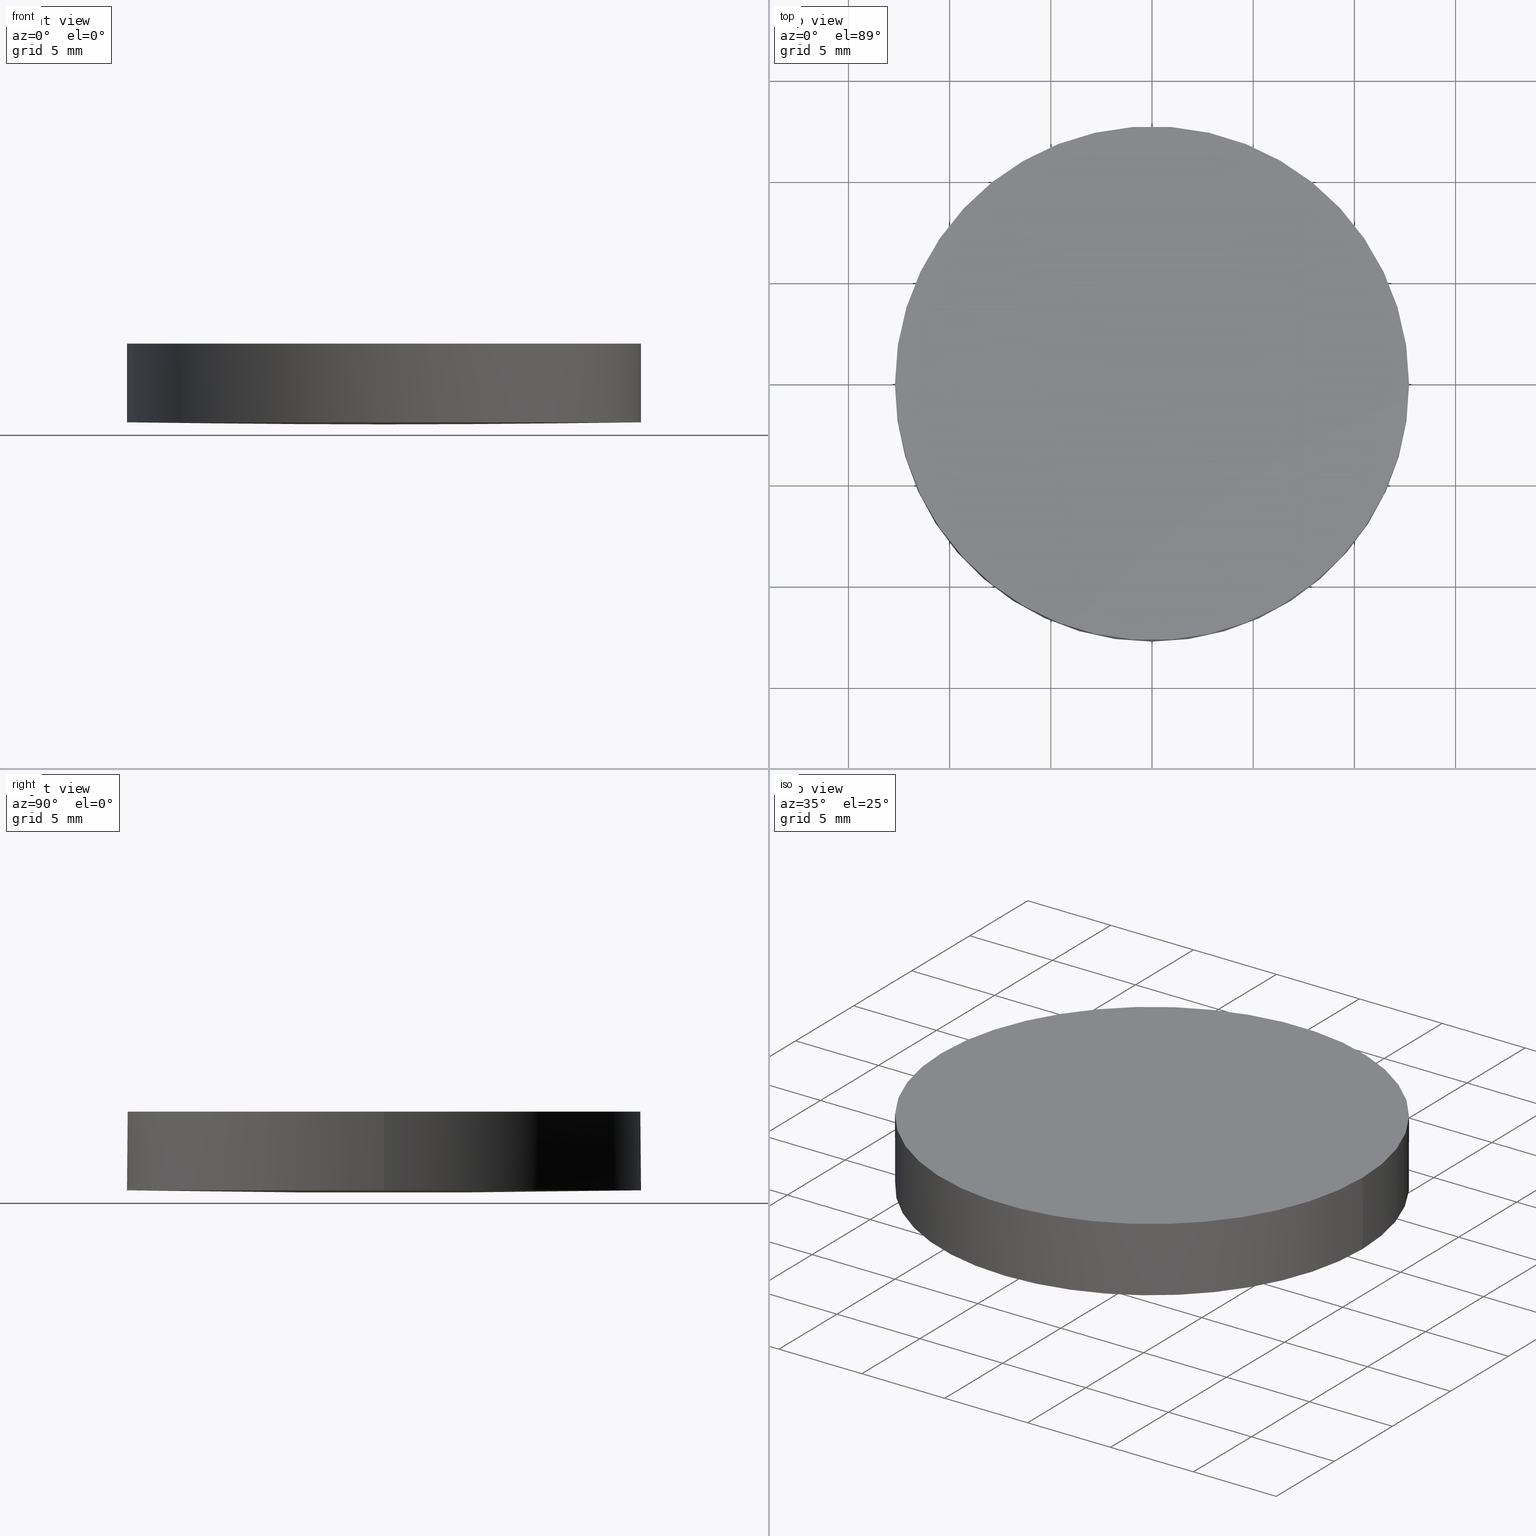
[diagram: canonical four-view strip — front | top / right | iso, engineering-drawing reading convention]
A machine part, canonical four-view strip (front | top / right | iso — engineering-drawing reading convention). The complete STEP part file that produces these views, byte-faithful:
ISO-10303-21;
HEADER;
FILE_DESCRIPTION (( 'STEP AP203' ),
    '1' );
FILE_NAME ('110-1255E UVFS pl-cx 25.4 F1500.STEP',
    '2018-12-13T14:56:42',
    ( '' ),
    ( '' ),
    'SwSTEP 2.0',
    'SolidWorks 2017',
    '' );
FILE_SCHEMA (( 'CONFIG_CONTROL_DESIGN' ));
ENDSEC;

DATA;
#1 = CARTESIAN_POINT ( 'NONE',  ( -12.69999999999999900, 3.997792089092478900E-015, 0.1129412937514580100 ) ) ;
#2 = CC_DESIGN_PERSON_AND_ORGANIZATION_ASSIGNMENT ( #81, #212, ( #123 ) ) ;
#3 = CARTESIAN_POINT ( 'NONE',  ( 4.996003610813200500E-016, 2.442490654175340100E-015, 0.1129412937514580100 ) ) ;
#4 = DIRECTION ( 'NONE',  ( 0.0000000000000000000, 0.0000000000000000000, 1.000000000000000000 ) ) ;
#5 = CARTESIAN_POINT ( 'NONE',  ( -2.898597193858023400E-014, 4.284590551240764700, -0.03856018883015555800 ) ) ;
#6 = CIRCLE ( 'NONE', #223, 12.69999999999999900 ) ;
#7 = CARTESIAN_POINT ( 'NONE',  ( -8.516479223123841500, 12.85238363988632700, 0.1537631259420381100 ) ) ;
#8 = CARTESIAN_POINT ( 'NONE',  ( 12.77688178538097900, -4.284590551240592400, 0.07574660210749215000 ) ) ;
#9 = CC_DESIGN_PERSON_AND_ORGANIZATION_ASSIGNMENT ( #210, #23, ( #87 ) ) ;
#10 = APPLICATION_CONTEXT ( 'configuration controlled 3d designs of mechanical parts and assemblies' ) ;
#11 = PERSON_AND_ORGANIZATION ( #15, #16 ) ;
#12 = ORIENTED_EDGE ( 'NONE', *, *, #157, .F. ) ;
#13 = DATE_AND_TIME ( #40, #215 ) ;
#14 = ORIENTED_EDGE ( 'NONE', *, *, #218, .T. ) ;
#15 = PERSON ( 'UNSPECIFIED', 'UNSPECIFIED', 'UNSPECIFIED', ('UNSPECIFIED'), ('UNSPECIFIED'), ('UNSPECIFIED') ) ;
#16 = ORGANIZATION ( 'UNSPECIFIED', 'UNSPECIFIED', '' ) ;
#17 = CARTESIAN_POINT ( 'NONE',  ( 8.516479223123806000, -12.85238363988615100, 0.1537631259419917100 ) ) ;
#18 = AXIS2_PLACEMENT_3D ( 'NONE', #229, #214, #231 ) ;
#19 = PERSON_AND_ORGANIZATION ( #15, #16 ) ;
#20 = DIRECTION ( 'NONE',  ( 1.000000000000000000, 0.0000000000000000000, 0.0000000000000000000 ) ) ;
#21 = CARTESIAN_POINT ( 'NONE',  ( -4.258324813021966200, 12.85238363988632700, 0.1156680747306574900 ) ) ;
#22 = CC_DESIGN_DATE_AND_TIME_ASSIGNMENT ( #13, #116, ( #91 ) ) ;
#23 = PERSON_AND_ORGANIZATION_ROLE ( 'design_owner' ) ;
#24 = PERSON_AND_ORGANIZATION ( #15, #16 ) ;
#25 = ORIENTED_EDGE ( 'NONE', *, *, #165, .F. ) ;
#26 = CC_DESIGN_APPROVAL ( #110, ( #194 ) ) ;
#27 = DIRECTION ( 'NONE',  ( -0.0000000000000000000, -0.0000000000000000000, -1.000000000000000000 ) ) ;
#28 = PRODUCT_RELATED_PRODUCT_CATEGORY ( 'detail', '', ( #87 ) ) ;
#29 = DIRECTION ( 'NONE',  ( 1.000000000000000000, -8.881784197001252300E-016, 0.0000000000000000000 ) ) ;
#30 = CYLINDRICAL_SURFACE ( 'NONE', #213, 12.69999999999999900 ) ;
#31 = DIRECTION ( 'NONE',  ( 0.0000000000000000000, 0.0000000000000000000, 1.000000000000000000 ) ) ;
#32 = CARTESIAN_POINT ( 'NONE',  ( 8.518318873860531300, -4.284590551240591500, -0.0004569086796730478300 ) ) ;
#33 = APPROVAL_DATE_TIME ( #52, #55 ) ;
#34 = CARTESIAN_POINT ( 'NONE',  ( 4.258324813021828500, -12.85238363988615100, 0.1156680747306225900 ) ) ;
#35 = CYLINDRICAL_SURFACE ( 'NONE', #63, 12.69999999999999900 ) ;
#36 = PLANE ( 'NONE',  #140 ) ;
#37 = FACE_OUTER_BOUND ( 'NONE', #133, .T. ) ;
#38 = CC_DESIGN_PERSON_AND_ORGANIZATION_ASSIGNMENT ( #24, #62, ( #194 ) ) ;
#39 = APPLICATION_CONTEXT ( 'configuration controlled 3d designs of mechanical parts and assemblies' ) ;
#40 = CALENDAR_DATE ( 2018, 13, 12 ) ;
#41 = VERTEX_POINT ( 'NONE', #47 ) ;
#42 = AXIS2_PLACEMENT_3D ( 'NONE', #159, #46, #29 ) ;
#43 = VERTEX_POINT ( 'NONE', #177 ) ;
#44 = APPROVAL_PERSON_ORGANIZATION ( #216, #110, #152 ) ;
#45 = EDGE_LOOP ( 'NONE', ( #228, #90 ) ) ;
#46 = DIRECTION ( 'NONE',  ( -0.0000000000000000000, -0.0000000000000000000, -1.000000000000000000 ) ) ;
#47 = CARTESIAN_POINT ( 'NONE',  ( -12.69999999999999900, 3.997792089092478900E-015, 4.000000000000000000 ) ) ;
#48 = PRODUCT_DEFINITION_SHAPE ( 'NONE', 'NONE',  #123 ) ;
#49 = DIRECTION ( 'NONE',  ( -3.255406916435471100E-016, -1.000000000000000000, -3.109432921510030800E-016 ) ) ;
#50 = CARTESIAN_POINT ( 'NONE',  ( -12.77412243810388900, -12.85238363988614700, 0.2299501795095526500 ) ) ;
#51 = CARTESIAN_POINT ( 'NONE',  ( -4.259244656794761500, -4.284590551240588000, -0.03856018883012517900 ) ) ;
#52 = DATE_AND_TIME ( #198, #104 ) ;
#53 = CIRCLE ( 'NONE', #60, 714.1000000000000200 ) ;
#54 = DIRECTION ( 'NONE',  ( 1.000000000000000000, 0.0000000000000000000, 0.0000000000000000000 ) ) ;
#55 = APPROVAL ( #134, 'UNSPECIFIED' ) ;
#56 = CARTESIAN_POINT ( 'NONE',  ( 4.996003610813200500E-016, 2.442490654175340100E-015, 4.000000000000000000 ) ) ;
#57 = CARTESIAN_POINT ( 'NONE',  ( -2.029626466892864300E-013, 12.85238363988632800, 0.1156680747306552400 ) ) ;
#58 = CC_DESIGN_APPROVAL ( #55, ( #91 ) ) ;
#59 = CIRCLE ( 'NONE', #82, 12.69999999999999900 ) ;
#60 = AXIS2_PLACEMENT_3D ( 'NONE', #162, #89, #49 ) ;
#61 =( NAMED_UNIT ( * ) SI_UNIT ( $, .STERADIAN. ) SOLID_ANGLE_UNIT ( ) );
#62 = PERSON_AND_ORGANIZATION_ROLE ( 'creator' ) ;
#63 = AXIS2_PLACEMENT_3D ( 'NONE', #111, #145, #54 ) ;
#64 = DATE_AND_TIME ( #155, #113 ) ;
#65 = VECTOR ( 'NONE', #179, 1000.000000000000000 ) ;
#66 = EDGE_CURVE ( 'NONE', #117, #105, #211, .T. ) ;
#67 = CARTESIAN_POINT ( 'NONE',  ( 12.69999999999999900, 2.442490654175340100E-015, 4.000000000000000000 ) ) ;
#68 = COORDINATED_UNIVERSAL_TIME_OFFSET ( 2, 0, .AHEAD. ) ;
#69 = ORIENTED_EDGE ( 'NONE', *, *, #129, .F. ) ;
#70 = CARTESIAN_POINT ( 'NONE',  ( -4.258324813021973300, -12.85238363988614700, 0.1156680747306575200 ) ) ;
#71 = CARTESIAN_POINT ( 'NONE',  ( 4.996003610813200500E-016, 2.442490654175340100E-015, 0.1129412937514580100 ) ) ;
#72 = AXIS2_PLACEMENT_3D ( 'NONE', #71, #109, #73 ) ;
#73 = DIRECTION ( 'NONE',  ( 1.000000000000000000, 0.0000000000000000000, 0.0000000000000000000 ) ) ;
#74 = ADVANCED_FACE ( 'NONE', ( #114 ), #30, .T. ) ;
#75 = CARTESIAN_POINT ( 'NONE',  ( 12.69999999999999900, 2.442490654175340100E-015, 0.1129412937514580100 ) ) ;
#76 = CARTESIAN_POINT ( 'NONE',  ( -2.081668171172168800E-013, 4.284590551240763800, -0.03856018883012413100 ) ) ;
#77 = CLOSED_SHELL ( 'NONE', ( #196, #74, #178, #235, #219 ) ) ;
#78 =( GEOMETRIC_REPRESENTATION_CONTEXT ( 3 ) GLOBAL_UNCERTAINTY_ASSIGNED_CONTEXT ( ( #158 ) ) GLOBAL_UNIT_ASSIGNED_CONTEXT ( ( #192, #83, #61 ) ) REPRESENTATION_CONTEXT ( 'NONE', 'WORKASPACE' ) );
#79 = CARTESIAN_POINT ( 'NONE',  ( -12.77688178538091700, 4.284590551240768300, 0.07574660210754180500 ) ) ;
#80 = PERSON_AND_ORGANIZATION_ROLE ( 'classification_officer' ) ;
#81 = PERSON_AND_ORGANIZATION ( #15, #16 ) ;
#82 = AXIS2_PLACEMENT_3D ( 'NONE', #56, #225, #20 ) ;
#83 =( NAMED_UNIT ( * ) PLANE_ANGLE_UNIT ( ) SI_UNIT ( $, .RADIAN. ) );
#84 = APPLICATION_PROTOCOL_DEFINITION ( 'international standard', 'config_control_design', 1994, #39 ) ;
#85 = APPROVAL_DATE_TIME ( #138, #154 ) ;
#86 = LINE ( 'NONE', #75, #139 ) ;
#87 = PRODUCT ( '110-1255E UVFS pl-cx 25.4 F1500', '110-1255E UVFS pl-cx 25.4 F1500', '', ( #132 ) ) ;
#88 = CALENDAR_DATE ( 2018, 13, 12 ) ;
#89 = DIRECTION ( 'NONE',  ( 1.000000000000000000, -3.255406916435470100E-016, -2.813334110390849800E-016 ) ) ;
#90 = ORIENTED_EDGE ( 'NONE', *, *, #221, .F. ) ;
#91 = SECURITY_CLASSIFICATION ( '', '', #153 ) ;
#92 = CARTESIAN_POINT ( 'NONE',  ( 4.259244656794623800, 4.284590551240763800, -0.03856018883015676500 ) ) ;
#93 = APPROVAL_DATE_TIME ( #107, #110 ) ;
#94 = EDGE_CURVE ( 'NONE', #43, #117, #230, .T. ) ;
#95 = FACE_OUTER_BOUND ( 'NONE', #150, .T. ) ;
#96 = ORIENTED_EDGE ( 'NONE', *, *, #189, .T. ) ;
#97 = CC_DESIGN_DATE_AND_TIME_ASSIGNMENT ( #64, #99, ( #123 ) ) ;
#98 = APPROVAL_ROLE ( '' ) ;
#99 = DATE_TIME_ROLE ( 'creation_date' ) ;
#100 = ORIENTED_EDGE ( 'NONE', *, *, #182, .F. ) ;
#101 = AXIS2_PLACEMENT_3D ( 'NONE', #227, #163, #205 ) ;
#102 = EDGE_LOOP ( 'NONE', ( #217, #96, #137, #100, #190 ) ) ;
#103 = CC_DESIGN_PERSON_AND_ORGANIZATION_ASSIGNMENT ( #149, #80, ( #91 ) ) ;
#104 = LOCAL_TIME ( 16, 56, 42.00000000000000000, #68 ) ;
#105 = VERTEX_POINT ( 'NONE', #106 ) ;
#106 = CARTESIAN_POINT ( 'NONE',  ( 12.69999999999999900, 2.442490654175340100E-015, 0.1129412937514580100 ) ) ;
#107 = DATE_AND_TIME ( #88, #160 ) ;
#108 = ORIENTED_EDGE ( 'NONE', *, *, #189, .F. ) ;
#109 = DIRECTION ( 'NONE',  ( -0.0000000000000000000, -0.0000000000000000000, -1.000000000000000000 ) ) ;
#110 = APPROVAL ( #171, 'UNSPECIFIED' ) ;
#111 = CARTESIAN_POINT ( 'NONE',  ( 4.996003610813200500E-016, 2.442490654175340100E-015, 0.1129412937514580100 ) ) ;
#112 = CARTESIAN_POINT ( 'NONE',  ( -8.518318873860568600, 4.284590551240767400, -0.0004569086796232828500 ) ) ;
#113 = LOCAL_TIME ( 16, 56, 42.00000000000000000, #222 ) ;
#114 = FACE_OUTER_BOUND ( 'NONE', #102, .T. ) ;
#115 = MANIFOLD_SOLID_BREP ( 'Imported1', #77 ) ;
#116 = DATE_TIME_ROLE ( 'classification_date' ) ;
#117 = VERTEX_POINT ( 'NONE', #197 ) ;
#118 = CC_DESIGN_PERSON_AND_ORGANIZATION_ASSIGNMENT ( #175, #191, ( #194 ) ) ;
#119 = COORDINATED_UNIVERSAL_TIME_OFFSET ( 2, 0, .AHEAD. ) ;
#120 = LOCAL_TIME ( 16, 56, 42.00000000000000000, #119 ) ;
#121 = VERTEX_POINT ( 'NONE', #67 ) ;
#122 = DIRECTION ( 'NONE',  ( 1.000000000000000000, 8.881784197001252300E-016, 0.0000000000000000000 ) ) ;
#123 = PRODUCT_DEFINITION ( 'UNKNOWN', '', #194, #188 ) ;
#124 = CARTESIAN_POINT ( 'NONE',  ( -12.77688178538091900, -4.284590551240584400, 0.07574660210753846000 ) ) ;
#125 = FACE_OUTER_BOUND ( 'NONE', #174, .T. ) ;
#126 = ADVANCED_BREP_SHAPE_REPRESENTATION ( '110-1255E UVFS pl-cx 25.4 F1500', ( #115, #18 ), #78 ) ;
#127 = CARTESIAN_POINT ( 'NONE',  ( 12.77412243810394400, -12.85238363988615400, 0.2299501795095063600 ) ) ;
#128 = CARTESIAN_POINT ( 'NONE',  ( -2.081668171172168800E-013, -4.284590551240588900, -0.03856018883012743400 ) ) ;
#129 = EDGE_CURVE ( 'NONE', #234, #117, #53, .T. ) ;
#130 = APPROVAL_PERSON_ORGANIZATION ( #19, #154, #173 ) ;
#131 = CARTESIAN_POINT ( 'NONE',  ( 12.77688178538098100, 4.284590551240760300, 0.07574660210749549500 ) ) ;
#132 = MECHANICAL_CONTEXT ( 'NONE', #10, 'mechanical' ) ;
#133 = EDGE_LOOP ( 'NONE', ( #69, #195, #180 ) ) ;
#134 = APPROVAL_STATUS ( 'not_yet_approved' ) ;
#135 = SHAPE_DEFINITION_REPRESENTATION ( #48, #126 ) ;
#136 = CC_DESIGN_APPROVAL ( #154, ( #123 ) ) ;
#137 = ORIENTED_EDGE ( 'NONE', *, *, #221, .T. ) ;
#138 = DATE_AND_TIME ( #224, #120 ) ;
#139 = VECTOR ( 'NONE', #148, 1000.000000000000000 ) ;
#140 = AXIS2_PLACEMENT_3D ( 'NONE', #164, #31, #206 ) ;
#141 = CC_DESIGN_SECURITY_CLASSIFICATION ( #91, ( #194 ) ) ;
#142 = CARTESIAN_POINT ( 'NONE',  ( 4.996003610813200500E-016, 2.442490654175340100E-015, 0.1129412937514580100 ) ) ;
#143 = CARTESIAN_POINT ( 'NONE',  ( 4.996003610813200500E-016, 2.442490654175340100E-015, 0.1129412937514580100 ) ) ;
#144 = CARTESIAN_POINT ( 'NONE',  ( -8.516479223123848600, -12.85238363988614700, 0.1537631259420381100 ) ) ;
#145 = DIRECTION ( 'NONE',  ( 0.0000000000000000000, 0.0000000000000000000, 1.000000000000000000 ) ) ;
#146 = CARTESIAN_POINT ( 'NONE',  ( 4.259244656794620300, -4.284590551240590600, -0.03856018883016010300 ) ) ;
#147 = ORIENTED_EDGE ( 'NONE', *, *, #182, .T. ) ;
#148 = DIRECTION ( 'NONE',  ( 0.0000000000000000000, 0.0000000000000000000, 1.000000000000000000 ) ) ;
#149 = PERSON_AND_ORGANIZATION ( #15, #16 ) ;
#150 = EDGE_LOOP ( 'NONE', ( #233, #193, #156 ) ) ;
#151 = APPLICATION_PROTOCOL_DEFINITION ( 'international standard', 'config_control_design', 1994, #10 ) ;
#152 = APPROVAL_ROLE ( '' ) ;
#153 = SECURITY_CLASSIFICATION_LEVEL ( 'unclassified' ) ;
#154 = APPROVAL ( #172, 'UNSPECIFIED' ) ;
#155 = CALENDAR_DATE ( 2018, 13, 12 ) ;
#156 = ORIENTED_EDGE ( 'NONE', *, *, #66, .T. ) ;
#157 = EDGE_CURVE ( 'NONE', #234, #43, #6, .T. ) ;
#158 = UNCERTAINTY_MEASURE_WITH_UNIT (LENGTH_MEASURE( 1.000000000000000100E-005 ), #192, 'distance_accuracy_value', 'NONE');
#159 = CARTESIAN_POINT ( 'NONE',  ( 4.996003610813200500E-016, 2.442490654175340100E-015, 0.1129412937514580100 ) ) ;
#160 = LOCAL_TIME ( 16, 56, 42.00000000000000000, #204 ) ;
#161 = DIRECTION ( 'NONE',  ( 1.000000000000000000, 1.776356839400250500E-015, 0.0000000000000000000 ) ) ;
#162 = CARTESIAN_POINT ( 'NONE',  ( 1.705302565824239900E-013, 2.273736754432320100E-013, 714.1000000000000200 ) ) ;
#163 = DIRECTION ( 'NONE',  ( -0.0000000000000000000, -0.0000000000000000000, -1.000000000000000000 ) ) ;
#164 = CARTESIAN_POINT ( 'NONE',  ( 0.0000000000000000000, 26.11199999999999800, 4.000000000000000000 ) ) ;
#165 = EDGE_CURVE ( 'NONE', #105, #234, #170, .T. ) ;
#166 = CARTESIAN_POINT ( 'NONE',  ( 8.518318873860531300, 4.284590551240762900, -0.0004569086796697003100 ) ) ;
#167 = COORDINATED_UNIVERSAL_TIME_OFFSET ( 2, 0, .AHEAD. ) ;
#168 = CARTESIAN_POINT ( 'NONE',  ( -4.259244656794761500, 4.284590551240766500, -0.03856018883012185500 ) ) ;
#169 =( BOUNDED_SURFACE ( )  B_SPLINE_SURFACE ( 3, 3, ( 
 ( #208, #34, #17, #127 ),
 ( #203, #146, #32, #8 ),
 ( #5, #92, #166, #131 ),
 ( #187, #183, #226, #209 ) ),
 .UNSPECIFIED., .F., .F., .T. ) 
 B_SPLINE_SURFACE_WITH_KNOTS ( ( 4, 4 ),
 ( 4, 4 ),
 ( 0.0000000000000000000, 1.000000000000000000 ),
 ( 0.0000000000000000000, 1.000000000000000000 ),
 .UNSPECIFIED. ) 
 GEOMETRIC_REPRESENTATION_ITEM ( )  RATIONAL_B_SPLINE_SURFACE ( (
 ( 1.000000000000000000, 0.9999733223857783000, 0.9999733223857783000, 1.000000000000000000),
 ( 0.9998920150541654700, 0.9998653403207244900, 0.9998653403207244900, 0.9998920150541654700),
 ( 0.9998920150541654700, 0.9998653403207244900, 0.9998653403207244900, 0.9998920150541654700),
 ( 1.000000000000000000, 0.9999733223857783000, 0.9999733223857783000, 1.000000000000000000) ) ) 
 REPRESENTATION_ITEM ( '' )  SURFACE ( )  );
#170 = CIRCLE ( 'NONE', #72, 12.69999999999999900 ) ;
#171 = APPROVAL_STATUS ( 'not_yet_approved' ) ;
#172 = APPROVAL_STATUS ( 'not_yet_approved' ) ;
#173 = APPROVAL_ROLE ( '' ) ;
#174 = EDGE_LOOP ( 'NONE', ( #108, #12, #25, #147, #14 ) ) ;
#175 = PERSON_AND_ORGANIZATION ( #15, #16 ) ;
#176 = LINE ( 'NONE', #1, #65 ) ;
#177 = CARTESIAN_POINT ( 'NONE',  ( -12.69999999999999900, 3.997792089092478900E-015, 0.1129412937514580100 ) ) ;
#178 = ADVANCED_FACE ( 'NONE', ( #37 ), #207, .T. ) ;
#179 = DIRECTION ( 'NONE',  ( 0.0000000000000000000, 0.0000000000000000000, 1.000000000000000000 ) ) ;
#180 = ORIENTED_EDGE ( 'NONE', *, *, #94, .T. ) ;
#181 = DIRECTION ( 'NONE',  ( -0.0000000000000000000, -0.0000000000000000000, -1.000000000000000000 ) ) ;
#182 = EDGE_CURVE ( 'NONE', #105, #121, #86, .T. ) ;
#183 = CARTESIAN_POINT ( 'NONE',  ( 4.258324813021837400, 12.85238363988632300, 0.1156680747306225900 ) ) ;
#184 = CARTESIAN_POINT ( 'NONE',  ( -12.77412243810388200, 12.85238363988633200, 0.2299501795095526500 ) ) ;
#185 = CIRCLE ( 'NONE', #101, 12.69999999999999900 ) ;
#186 = CARTESIAN_POINT ( 'NONE',  ( -3.447252486504199500E-014, -12.70000000000168900, 0.1129412937514793200 ) ) ;
#187 = CARTESIAN_POINT ( 'NONE',  ( -2.615341708717756900E-014, 12.85238363988632800, 0.1156680747306237900 ) ) ;
#188 = DESIGN_CONTEXT ( 'detailed design', #39, 'design' ) ;
#189 = EDGE_CURVE ( 'NONE', #43, #41, #176, .T. ) ;
#190 = ORIENTED_EDGE ( 'NONE', *, *, #66, .F. ) ;
#191 = PERSON_AND_ORGANIZATION_ROLE ( 'design_supplier' ) ;
#192 =( LENGTH_UNIT ( ) NAMED_UNIT ( * ) SI_UNIT ( .MILLI., .METRE. ) );
#193 = ORIENTED_EDGE ( 'NONE', *, *, #129, .T. ) ;
#194 = PRODUCT_DEFINITION_FORMATION_WITH_SPECIFIED_SOURCE ( 'ANY', '', #87, .NOT_KNOWN. ) ;
#195 = ORIENTED_EDGE ( 'NONE', *, *, #157, .T. ) ;
#196 = ADVANCED_FACE ( 'NONE', ( #95 ), #169, .T. ) ;
#197 = CARTESIAN_POINT ( 'NONE',  ( -2.620379129729472800E-014, 12.70000000000191800, 0.1129412937514793200 ) ) ;
#198 = CALENDAR_DATE ( 2018, 13, 12 ) ;
#199 = AXIS2_PLACEMENT_3D ( 'NONE', #142, #181, #161 ) ;
#200 = FACE_OUTER_BOUND ( 'NONE', #45, .T. ) ;
#201 = CARTESIAN_POINT ( 'NONE',  ( -2.099015405931936600E-013, -12.85238363988615100, 0.1156680747306552700 ) ) ;
#202 = CARTESIAN_POINT ( 'NONE',  ( -8.518318873860570400, -4.284590551240587100, -0.0004569086796266033800 ) ) ;
#203 = CARTESIAN_POINT ( 'NONE',  ( -3.177558908150082700E-014, -4.284590551240588000, -0.03856018883015888800 ) ) ;
#204 = COORDINATED_UNIVERSAL_TIME_OFFSET ( 2, 0, .AHEAD. ) ;
#205 = DIRECTION ( 'NONE',  ( 1.000000000000000000, 0.0000000000000000000, 0.0000000000000000000 ) ) ;
#206 = DIRECTION ( 'NONE',  ( 1.000000000000000000, 0.0000000000000000000, -0.0000000000000000000 ) ) ;
#207 =( BOUNDED_SURFACE ( )  B_SPLINE_SURFACE ( 3, 3, ( 
 ( #50, #144, #70, #201 ),
 ( #124, #202, #51, #128 ),
 ( #79, #112, #168, #76 ),
 ( #184, #7, #21, #57 ) ),
 .UNSPECIFIED., .F., .F., .T. ) 
 B_SPLINE_SURFACE_WITH_KNOTS ( ( 4, 4 ),
 ( 4, 4 ),
 ( 0.0000000000000000000, 1.000000000000000000 ),
 ( 0.0000000000000000000, 1.000000000000000000 ),
 .UNSPECIFIED. ) 
 GEOMETRIC_REPRESENTATION_ITEM ( )  RATIONAL_B_SPLINE_SURFACE ( (
 ( 1.000000000000000000, 0.9999733223857783000, 0.9999733223857783000, 1.000000000000000000),
 ( 0.9998920150541654700, 0.9998653403207244900, 0.9998653403207244900, 0.9998920150541654700),
 ( 0.9998920150541654700, 0.9998653403207244900, 0.9998653403207244900, 0.9998920150541654700),
 ( 1.000000000000000000, 0.9999733223857783000, 0.9999733223857783000, 1.000000000000000000) ) ) 
 REPRESENTATION_ITEM ( '' )  SURFACE ( )  );
#208 = CARTESIAN_POINT ( 'NONE',  ( -3.452136480597112300E-014, -12.85238363988615100, 0.1156680747306237900 ) ) ;
#209 = CARTESIAN_POINT ( 'NONE',  ( 12.77412243810395300, 12.85238363988632500, 0.2299501795095063600 ) ) ;
#210 = PERSON_AND_ORGANIZATION ( #15, #16 ) ;
#211 = CIRCLE ( 'NONE', #199, 12.69999999999999900 ) ;
#212 = PERSON_AND_ORGANIZATION_ROLE ( 'creator' ) ;
#213 = AXIS2_PLACEMENT_3D ( 'NONE', #3, #4, #220 ) ;
#214 = DIRECTION ( 'NONE',  ( 0.0000000000000000000, 0.0000000000000000000, 1.000000000000000000 ) ) ;
#215 = LOCAL_TIME ( 16, 56, 42.00000000000000000, #167 ) ;
#216 = PERSON_AND_ORGANIZATION ( #15, #16 ) ;
#217 = ORIENTED_EDGE ( 'NONE', *, *, #94, .F. ) ;
#218 = EDGE_CURVE ( 'NONE', #121, #41, #185, .T. ) ;
#219 = ADVANCED_FACE ( 'NONE', ( #200 ), #36, .T. ) ;
#220 = DIRECTION ( 'NONE',  ( 1.000000000000000000, 0.0000000000000000000, 0.0000000000000000000 ) ) ;
#221 = EDGE_CURVE ( 'NONE', #41, #121, #59, .T. ) ;
#222 = COORDINATED_UNIVERSAL_TIME_OFFSET ( 2, 0, .AHEAD. ) ;
#223 = AXIS2_PLACEMENT_3D ( 'NONE', #143, #27, #122 ) ;
#224 = CALENDAR_DATE ( 2018, 13, 12 ) ;
#225 = DIRECTION ( 'NONE',  ( -0.0000000000000000000, -0.0000000000000000000, -1.000000000000000000 ) ) ;
#226 = CARTESIAN_POINT ( 'NONE',  ( 8.516479223123813100, 12.85238363988632300, 0.1537631259419917100 ) ) ;
#227 = CARTESIAN_POINT ( 'NONE',  ( 4.996003610813200500E-016, 2.442490654175340100E-015, 4.000000000000000000 ) ) ;
#228 = ORIENTED_EDGE ( 'NONE', *, *, #218, .F. ) ;
#229 = CARTESIAN_POINT ( 'NONE',  ( 0.0000000000000000000, 0.0000000000000000000, 0.0000000000000000000 ) ) ;
#230 = CIRCLE ( 'NONE', #42, 12.69999999999999900 ) ;
#231 = DIRECTION ( 'NONE',  ( 1.000000000000000000, 0.0000000000000000000, 0.0000000000000000000 ) ) ;
#232 = APPROVAL_PERSON_ORGANIZATION ( #11, #55, #98 ) ;
#233 = ORIENTED_EDGE ( 'NONE', *, *, #165, .T. ) ;
#234 = VERTEX_POINT ( 'NONE', #186 ) ;
#235 = ADVANCED_FACE ( 'NONE', ( #125 ), #35, .T. ) ;
ENDSEC;
END-ISO-10303-21;
